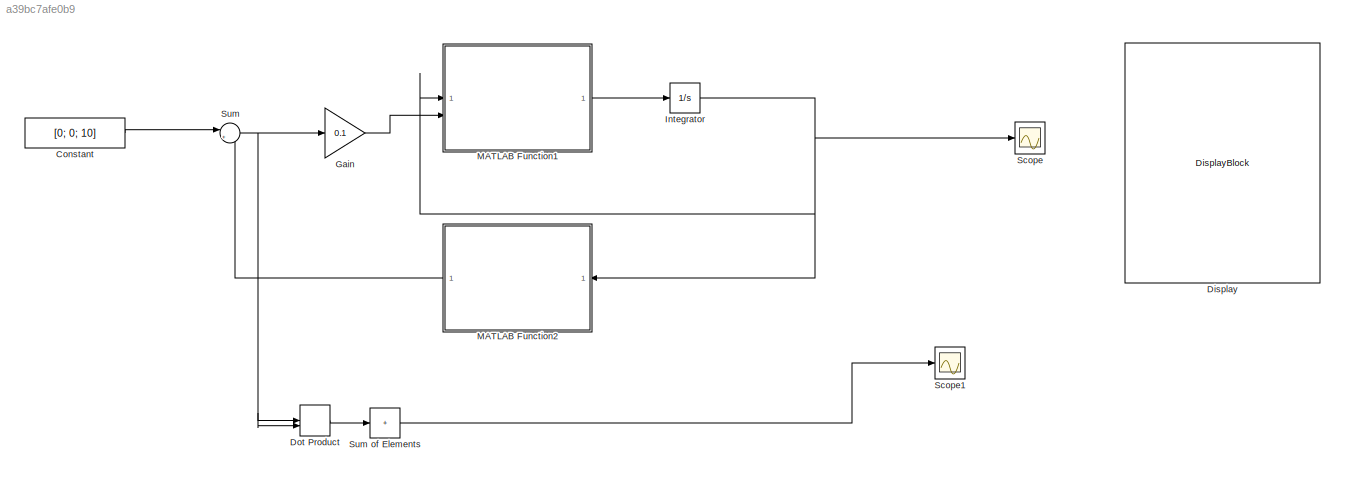
MODEL slx_a39bc7afe0b9
KIND model
CONFIG AbsTol = auto
CONFIG EnableMultiTasking = off
CONFIG FixedStep = auto
CONFIG MaxStep = auto
CONFIG MinStep = auto
CONFIG RelTol = 1e-3
CONFIG SampleTimeConstraint = Unconstrained
CONFIG SolverName = VariableStepAuto
CONFIG StartTime = 0.0
CONFIG StopTime = 10000.0
BLOCK [Constant] Constant
  Value = [0; 0; 10]
  VectorParams1D = off
BLOCK [DisplayBlock] Display
  LabelPosition = Hide
  Transparency = 1
BLOCK [DotProduct] Dot Product
  OutDataTypeStr = Inherit: Inherit via internal rule
BLOCK [Gain] Gain
  Gain = 0.1
BLOCK [Integrator] Integrator
  InitialCondition = [0; 0; 0; 0]
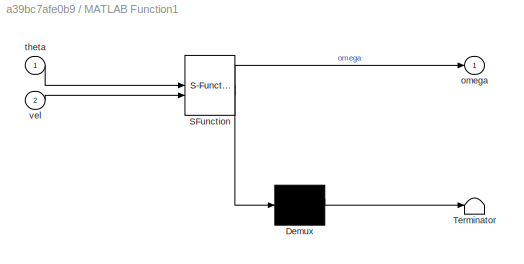
BLOCK [SubSystem] MATLAB Function1
  ErrorFcn = Stateflow.Translate.translate
  LibrarySourceBlock = simulink/User-Defined\nFunctions/MATLAB Function
  PermitHierarchicalResolution = ExplicitOnly
  SFBlockType = MATLAB Function
  TreatAsAtomicUnit = on
BLOCK [Demux] MATLAB Function1/ Demux 
  Outputs = 1
BLOCK [S-Function] MATLAB Function1/ SFunction 
  EnableBusSupport = on
  FunctionName = sf_sfun
  PortCounts = [2 2]
  SFcnIsStateOwnerBlock = off
  SFunctionDeploymentMode = off
  Tag = Stateflow S-Function 3
BLOCK [Terminator] MATLAB Function1/ Terminator 
BLOCK [Outport] MATLAB Function1/omega
BLOCK [Inport] MATLAB Function1/theta
BLOCK [Inport] MATLAB Function1/vel
  Port = 2
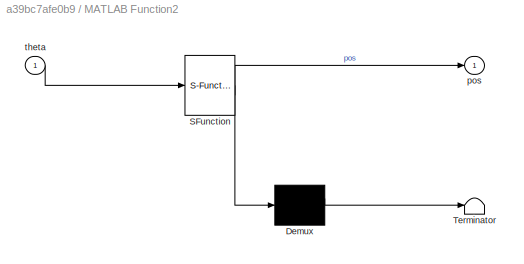
BLOCK [SubSystem] MATLAB Function2
  ErrorFcn = Stateflow.Translate.translate
  LibrarySourceBlock = simulink/User-Defined\nFunctions/MATLAB Function
  NameLocation = top
  PermitHierarchicalResolution = ExplicitOnly
  SFBlockType = MATLAB Function
  TreatAsAtomicUnit = on
BLOCK [Demux] MATLAB Function2/ Demux 
  Outputs = 1
BLOCK [S-Function] MATLAB Function2/ SFunction 
  EnableBusSupport = on
  FunctionName = sf_sfun
  PortCounts = [1 2]
  SFcnIsStateOwnerBlock = off
  SFunctionDeploymentMode = off
  Tag = Stateflow S-Function 4
BLOCK [Terminator] MATLAB Function2/ Terminator 
BLOCK [Outport] MATLAB Function2/pos
BLOCK [Inport] MATLAB Function2/theta
BLOCK [Scope] Scope
  Floating = off
  NumInputPorts = 1
  ScopeSpecificationString = Simulink.scopes.TimeScopeBlockCfg('CurrentConfiguration', extmgr.ConfigurationSet(extmgr.Configuration('Core','General UI',true),extmgr.Configuration('Core','Source UI',true),extmgr.Configuration('Sources','WiredSimulink',true),extmgr.Configuration('Visuals','Time Domain',true,'SerializedDisplays',{struct('MinYLimReal','-3.77261','MaxYLimReal','3.95914','YLabelReal','','MinYLimMag','0.00000','MaxY...<+1404ch>
BLOCK [Scope] Scope1
  Floating = off
  NumInputPorts = 1
  ScopeSpecificationString = Simulink.scopes.TimeScopeBlockCfg('CurrentConfiguration', extmgr.ConfigurationSet(extmgr.Configuration('Core','General UI',true),extmgr.Configuration('Core','Source UI',true),extmgr.Configuration('Sources','WiredSimulink',true,'DataLoggingVariableName','ScopeData1'),extmgr.Configuration('Visuals','Time Domain',true,'SerializedDisplays',{struct('MinYLimReal','31.5491','MaxYLimReal','73.55816','YLab...<+1392ch>
BLOCK [Sum] Sum
  Inputs = |+-
BLOCK [Sum] Sum of Elements
  IconShape = rectangular
  Inputs = +
LINE Constant:1 -> Sum:1
LINE Dot Product:1 -> Sum of Elements:1
LINE Gain:1 -> MATLAB Function1:2
NET Integrator:1 -> MATLAB Function1:1, MATLAB Function2:1, Scope:1
LINE MATLAB Function1:1 -> Integrator:1
LINE MATLAB Function2:1 -> Sum:2
LINE Sum of Elements:1 -> Scope1:1
NET Sum:1 -> Dot Product:1, Dot Product:2, Gain:1
note: NET lines group one-source signal fan-out (src -> all destinations, sorted); 1:1 wires keep LINE
CHART MATLAB Function2 states=1 transitions=1
  STATE_LABEL 'eML_blk_kernel()'
  STATE_LABEL 'SCRIPT:\nfunction pos = pos_from_theta(theta)\n    PE_eval = @(th1,th2,th3,th4)[cos(th1).*cos(th2).*(5.9e+1./5.0)+cos(th4).*(cos(th1).*cos(th2).*sin(th3+pi./2.0)+cos(th1).*cos(th3+pi./2.0).*sin(th2)).*(9.4e+1./5.0)-sin(th4).*(cos(th1).*sin(th2).*sin(th3+pi./2.0)-cos(th1).*cos(th2).*cos(th3+pi./2.0)).*(9.4e+1./5.0)-cos(th1).*sin(th2).*sin(th3+pi./2.0).*(2.5e+1./2.0)+cos(th1).*cos(th2).*cos(th3+pi./2....<+705ch>'
CHART MATLAB Function1 states=1 transitions=1
  STATE_LABEL 'eML_blk_kernel()'
  STATE_LABEL 'SCRIPT:\nfunction omega = omega_from_vel(theta, vel)\n\n    JPE_eval = @(th1,th2,th3,th4)reshape([cos(th2).*sin(th1).*(-5.9e+1./5.0)-cos(th4).*(cos(th2).*sin(th1).*sin(th3+pi./2.0)+cos(th3+pi./2.0).*sin(th1).*sin(th2)).*(9.4e+1./5.0)-sin(th4).*(cos(th2).*cos(th3+pi./2.0).*sin(th1)-sin(th1).*sin(th2).*sin(th3+pi./2.0)).*(9.4e+1./5.0)-cos(th2).*cos(th3+pi./2.0).*sin(th1).*(2.5e+1./2.0)+sin(th1).*sin(th...<+2879ch>'
CHART  states=0 transitions=0
CHART  states=0 transitions=0
